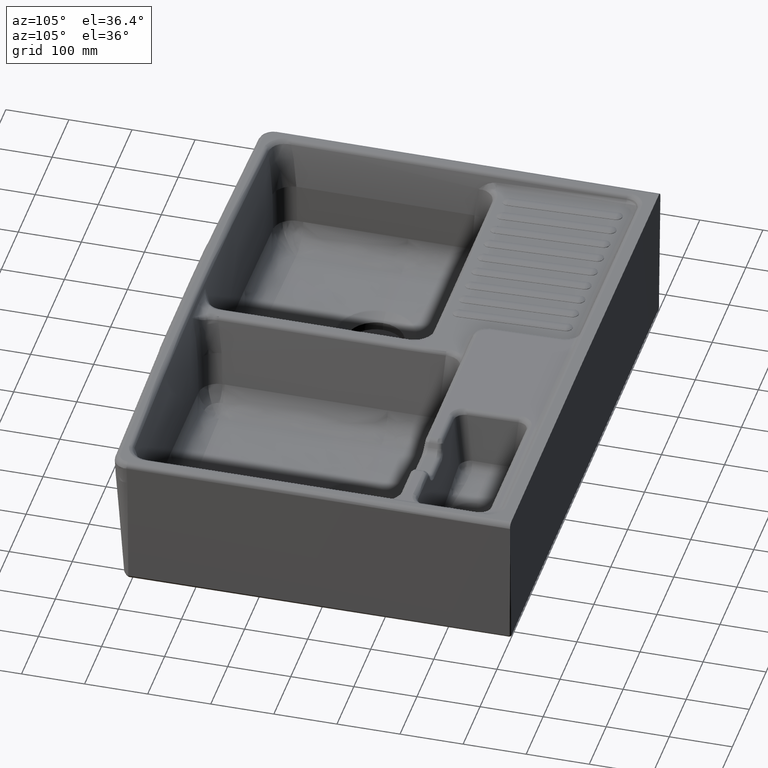
[diagram: clean part render]
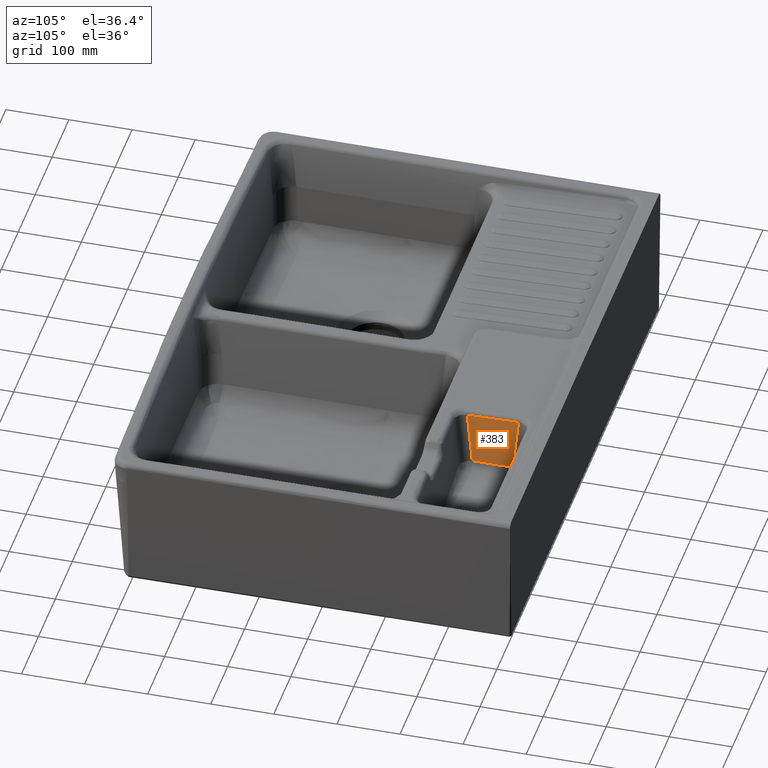
[diagram: same view with one face highlighted and labeled with its STEP entity id]
A machine part, auxiliary view. The second image highlights one B-rep face of the part: STEP entity #383.
In plain terms, the highlighted planar face has unit normal (0.9946, -0.0021, 0.1034).
Its self-contained STEP definition (entity closure, byte-faithful):
#141=PLANE('',#7476);
#383=ADVANCED_FACE('',(#1242),#141,.T.);
#1242=FACE_OUTER_BOUND('',#1693,.T.);
#1693=EDGE_LOOP('',(#2947,#2948,#2949,#2950,#2951,#2952,#2953,#2954));
#2947=ORIENTED_EDGE('',*,*,#5368,.T.);
#2948=ORIENTED_EDGE('',*,*,#5372,.T.);
#2949=ORIENTED_EDGE('',*,*,#5681,.F.);
#2950=ORIENTED_EDGE('',*,*,#5682,.F.);
#2951=ORIENTED_EDGE('',*,*,#5677,.T.);
#2952=ORIENTED_EDGE('',*,*,#5374,.T.);
#2953=ORIENTED_EDGE('',*,*,#5375,.T.);
#2954=ORIENTED_EDGE('',*,*,#5377,.T.);
#4520=VERTEX_POINT('',#14899);
#4521=VERTEX_POINT('',#14957);
#4522=VERTEX_POINT('',#14958);
#4523=VERTEX_POINT('',#15047);
#4524=VERTEX_POINT('',#15175);
#4525=VERTEX_POINT('',#15319);
#4708=VERTEX_POINT('',#21900);
#4711=VERTEX_POINT('',#21935);
#5368=EDGE_CURVE('',#4521,#4522,#6563,.T.);
#5372=EDGE_CURVE('',#4522,#4523,#6567,.T.);
#5374=EDGE_CURVE('',#4520,#4524,#6569,.T.);
#5375=EDGE_CURVE('',#4524,#4525,#6570,.T.);
#5377=EDGE_CURVE('',#4525,#4521,#6572,.T.);
#5677=EDGE_CURVE('',#4708,#4520,#6872,.T.);
#5681=EDGE_CURVE('',#4711,#4523,#6876,.T.);
#5682=EDGE_CURVE('',#4708,#4711,#6877,.T.);
#6563=B_SPLINE_CURVE_WITH_KNOTS('',3,(#14953,#14954,#14955,#14956),
 .UNSPECIFIED.,.F.,.F.,(4,4),(0.,1.),.UNSPECIFIED.);
#6567=B_SPLINE_CURVE_WITH_KNOTS('',3,(#15048,#15049,#15050,#15051),
 .UNSPECIFIED.,.F.,.F.,(4,4),(0.,1.),.UNSPECIFIED.);
#6569=B_SPLINE_CURVE_WITH_KNOTS('',3,(#15176,#15177,#15178,#15179),
 .UNSPECIFIED.,.F.,.F.,(4,4),(0.,1.),.UNSPECIFIED.);
#6570=B_SPLINE_CURVE_WITH_KNOTS('',3,(#15299,#15300,#15301,#15302,#15303,
#15304,#15305,#15306,#15307,#15308,#15309,#15310,#15311,#15312,#15313,#15314,
#15315,#15316,#15317,#15318),.UNSPECIFIED.,.F.,.F.,(4,2,1,1,1,1,1,1,1,1,
1,1,1,1,2,4),(0.,0.00390624999999897,0.00781249999999795,0.0156249999999959,
0.0312499999999955,0.0624999999999947,0.124999999999993,0.249999999999994,
0.499999999999994,0.749999999999995,0.874999999999996,0.937499999999996,
0.968749999999996,0.984374999999996,0.992187499999998,1.),.UNSPECIFIED.);
#6572=B_SPLINE_CURVE_WITH_KNOTS('',3,(#15364,#15365,#15366,#15367,#15368,
#15369,#15370,#15371,#15372,#15373,#15374,#15375),.UNSPECIFIED.,.F.,.F.,
(4,1,1,1,1,1,1,2,4),(0.,0.50000000000001,0.750000000000012,0.875000000000011,
0.93750000000001,0.96875000000001,0.984375000000007,0.992187500000004,1.),
 .UNSPECIFIED.);
#6872=B_SPLINE_CURVE_WITH_KNOTS('',3,(#21896,#21897,#21898,#21899),
 .UNSPECIFIED.,.F.,.F.,(4,4),(0.,1.),.UNSPECIFIED.);
#6876=B_SPLINE_CURVE_WITH_KNOTS('',1,(#21933,#21934),.UNSPECIFIED.,.F.,
 .F.,(2,2),(0.,1.),.UNSPECIFIED.);
#6877=B_SPLINE_CURVE_WITH_KNOTS('',1,(#21936,#21937),.UNSPECIFIED.,.F.,
 .F.,(2,2),(0.,1.),.UNSPECIFIED.);
#7476=AXIS2_PLACEMENT_3D('',#21938,#7531,#7532);
#7531=DIRECTION('',(0.99464255069545,-0.00206749607441838,0.103353383137809));
#7532=DIRECTION('',(0.103374060315189,0.019892910117595,-0.994443601106169));
#14899=CARTESIAN_POINT('',(178.029132070652,174.758197761557,-93.1979120694168));
#14953=CARTESIAN_POINT('',(178.144676785816,220.950280341549,-93.3857595563667));
#14954=CARTESIAN_POINT('',(178.146213661334,223.867896280653,-93.3421855815336));
#14955=CARTESIAN_POINT('',(178.147750536851,226.785512219757,-93.2986116067005));
#14956=CARTESIAN_POINT('',(178.149287412369,229.703128158861,-93.2550376318675));
#14957=CARTESIAN_POINT('',(178.144666851178,220.950382529911,-93.3857594083416));
#14958=CARTESIAN_POINT('',(178.149283173427,229.702940996657,-93.2550412765593));
#15047=CARTESIAN_POINT('',(178.149895076268,238.654404215113,-93.0818808036009));
#15048=CARTESIAN_POINT('',(178.149287412369,229.703128158861,-93.2550376318675));
#15049=CARTESIAN_POINT('',(178.149473663502,232.686907545208,-93.1971421021374));
#15050=CARTESIAN_POINT('',(178.149659914635,235.670686931555,-93.1392465724074));
#15051=CARTESIAN_POINT('',(178.149846165768,238.654466317901,-93.0813510426773));
#15175=CARTESIAN_POINT('',(178.055530995148,181.911575678216,-93.3088078984313));
#15176=CARTESIAN_POINT('',(178.02912521822,174.758006857147,-93.197762209369));
#15177=CARTESIAN_POINT('',(178.037927864359,177.142490578487,-93.2347767275064));
#15178=CARTESIAN_POINT('',(178.046730510497,179.526974299827,-93.2717912456437));
#15179=CARTESIAN_POINT('',(178.055533156636,181.911458021167,-93.308805763781));
#15299=CARTESIAN_POINT('',(178.055533156636,181.911458021167,-93.308805763781));
#15300=CARTESIAN_POINT('',(178.055749592423,181.969733462215,-93.3097229277377));
#15301=CARTESIAN_POINT('',(178.055750524559,181.970008260917,-93.3097264012276));
#15302=CARTESIAN_POINT('',(178.055966583908,182.028278539689,-93.3106400457213));
#15303=CARTESIAN_POINT('',(178.056290389708,182.115680073872,-93.312007864502));
#15304=CARTESIAN_POINT('',(178.057043954015,182.319589799149,-93.3151809059368));
#15305=CARTESIAN_POINT('',(178.058543152381,182.727300498436,-93.3214528459274));
#15306=CARTESIAN_POINT('',(178.061509828129,183.54228689194,-93.3337001543913));
#15307=CARTESIAN_POINT('',(178.067316295688,185.170519658675,-93.3570084852508));
#15308=CARTESIAN_POINT('',(178.078421695054,188.420025111042,-93.3988800026953));
#15309=CARTESIAN_POINT('',(178.092836449143,193.042289811276,-93.4451389011176));
#15310=CARTESIAN_POINT('',(178.105317733702,197.638039916837,-93.473321059447));
#15311=CARTESIAN_POINT('',(178.11303956139,200.841144828526,-93.4835582817287));
#15312=CARTESIAN_POINT('',(178.116646707358,202.43921724382,-93.4863043207324));
#15313=CARTESIAN_POINT('',(178.118386838373,203.237383441329,-93.4870841972));
#15314=CARTESIAN_POINT('',(178.119241043388,203.636249037549,-93.4873258496752));
#15315=CARTESIAN_POINT('',(178.119603732575,203.807144828243,-93.487397639502));
#15316=CARTESIAN_POINT('',(178.119844770105,203.921064998109,-93.4874384381599));
#15317=CARTESIAN_POINT('',(178.11984574669,203.921356153846,-93.4874420122066));
#15318=CARTESIAN_POINT('',(178.120085276225,204.035255643856,-93.4874687120534));
#15319=CARTESIAN_POINT('',(178.12008562161,204.035097728812,-93.4874686201104));
#15364=CARTESIAN_POINT('',(178.120085276219,204.035255643856,-93.4874687119928));
#15365=CARTESIAN_POINT('',(178.125991750418,206.873135825464,-93.4875415149089));
#15366=CARTESIAN_POINT('',(178.133495511702,211.115883466114,-93.4748829662605));
#15367=CARTESIAN_POINT('',(178.139876986897,216.041128603341,-93.4377710875285));
#15368=CARTESIAN_POINT('',(178.1424744963,218.497594394905,-93.4136292556221));
#15369=CARTESIAN_POINT('',(178.14362494395,219.724288096386,-93.4001618664989));
#15370=CARTESIAN_POINT('',(178.144163091011,220.337250148552,-93.3930790536449));
#15371=CARTESIAN_POINT('',(178.144422895351,220.64363497499,-93.3894503676447));
#15372=CARTESIAN_POINT('',(178.144532253813,220.774922143541,-93.3878765137361));
#15373=CARTESIAN_POINT('',(178.144604718065,220.862442341638,-93.3868231216268));
#15374=CARTESIAN_POINT('',(178.144605202162,220.862769282662,-93.3868212402571));
#15375=CARTESIAN_POINT('',(178.144676785816,220.950280341549,-93.3857595563667));
#21896=CARTESIAN_POINT('',(169.818304885533,164.519294842044,-14.3840597953268));
#21897=CARTESIAN_POINT('',(172.555244996429,167.932198847078,-40.6552939333409));
#21898=CARTESIAN_POINT('',(175.292185107324,171.345102852113,-66.926528071355));
#21899=CARTESIAN_POINT('',(178.02912521822,174.758006857147,-93.197762209369));
#21900=CARTESIAN_POINT('',(169.818303224445,164.519053349806,-14.3840708949402));
#21933=CARTESIAN_POINT('',(169.818340442906,245.837880720592,-12.7576889726574));
#21934=CARTESIAN_POINT('',(178.149956694042,238.65437164475,-93.0824095687434));
#21935=CARTESIAN_POINT('',(169.818335115776,245.83788036206,-12.7576894798893));
#21936=CARTESIAN_POINT('',(169.8183,164.51881,-14.38407));
#21937=CARTESIAN_POINT('',(169.81833,245.837880000004,-12.7576899999999));
#21938=CARTESIAN_POINT('',(181.17667,277.3501,-121.43654));